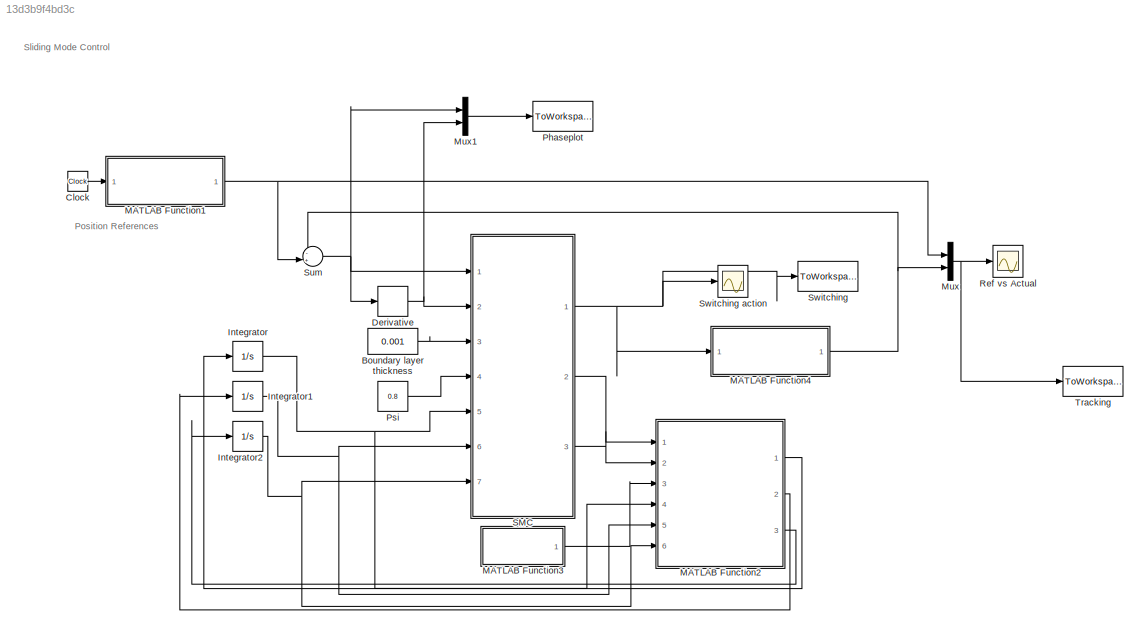
MODEL slx_13d3b9f4bd3c
KIND model
CONFIG AbsTol = auto
CONFIG EnableMultiTasking = off
CONFIG FixedStep = ts
CONFIG MaxStep = auto
CONFIG MinStep = auto
CONFIG RelTol = 1e-3
CONFIG SampleTimeConstraint = Unconstrained
CONFIG SolverName = ode4
CONFIG StartTime = 0.0
CONFIG StopTime = 10.0
BLOCK [Constant] Boundary layer thickness
  Value = 0.001
BLOCK [Clock] Clock
BLOCK [Derivative] Derivative
BLOCK [Integrator] Integrator
  InitialCondition = 1
  Ports = [1, 1]
BLOCK [Integrator] Integrator1
  InitialCondition = 1
  Ports = [1, 1]
BLOCK [Integrator] Integrator2
  InitialCondition = 1
  Ports = [1, 1]
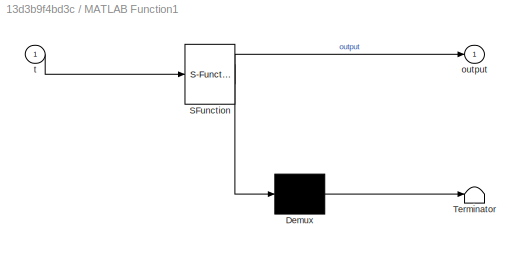
BLOCK [SubSystem] MATLAB Function1
  ErrorFcn = Stateflow.Translate.translate
  PermitHierarchicalResolution = ExplicitOnly
  Ports = [1, 1]
  RequestExecContextInheritance = off
  SFBlockType = MATLAB Function
  TreatAsAtomicUnit = on
BLOCK [Demux] MATLAB Function1/ Demux 
  Outputs = 1
  Ports = [1, 1]
BLOCK [S-Function] MATLAB Function1/ SFunction 
  EnableBusSupport = on
  FunctionName = sf_sfun
  PortCounts = [1 2]
  Ports = [1, 2]
  SFcnIsStateOwnerBlock = off
  SFunctionDeploymentMode = off
  Tag = Stateflow S-Function 4
BLOCK [Terminator] MATLAB Function1/ Terminator 
BLOCK [Outport] MATLAB Function1/output
BLOCK [Inport] MATLAB Function1/t
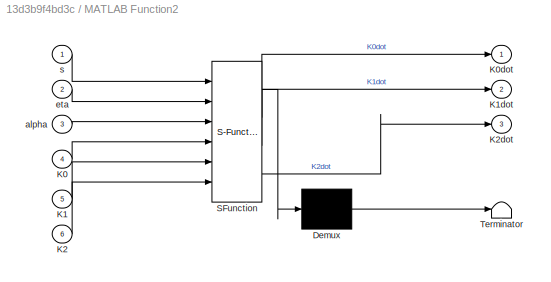
BLOCK [SubSystem] MATLAB Function2
  ErrorFcn = Stateflow.Translate.translate
  PermitHierarchicalResolution = ExplicitOnly
  Ports = [6, 3]
  RequestExecContextInheritance = off
  SFBlockType = MATLAB Function
  TreatAsAtomicUnit = on
BLOCK [Demux] MATLAB Function2/ Demux 
  Outputs = 1
  Ports = [1, 1]
BLOCK [S-Function] MATLAB Function2/ SFunction 
  EnableBusSupport = on
  FunctionName = sf_sfun
  PortCounts = [6 4]
  Ports = [6, 4]
  SFcnIsStateOwnerBlock = off
  SFunctionDeploymentMode = off
  Tag = Stateflow S-Function 1
BLOCK [Terminator] MATLAB Function2/ Terminator 
BLOCK [Inport] MATLAB Function2/K0
  Port = 4
BLOCK [Outport] MATLAB Function2/K0dot
BLOCK [Inport] MATLAB Function2/K1
  Port = 5
BLOCK [Outport] MATLAB Function2/K1dot
  Port = 2
BLOCK [Inport] MATLAB Function2/K2
  Port = 6
BLOCK [Outport] MATLAB Function2/K2dot
  Port = 3
BLOCK [Inport] MATLAB Function2/alpha
  Port = 3
BLOCK [Inport] MATLAB Function2/eta
  Port = 2
BLOCK [Inport] MATLAB Function2/s
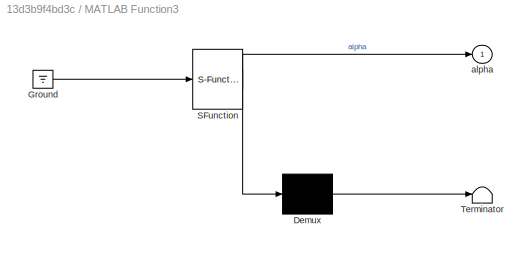
BLOCK [SubSystem] MATLAB Function3
  ErrorFcn = Stateflow.Translate.translate
  PermitHierarchicalResolution = ExplicitOnly
  Ports = [0, 1]
  RequestExecContextInheritance = off
  SFBlockType = MATLAB Function
  TreatAsAtomicUnit = on
BLOCK [Demux] MATLAB Function3/ Demux 
  Outputs = 1
  Ports = [1, 1]
BLOCK [Ground] MATLAB Function3/ Ground 
BLOCK [S-Function] MATLAB Function3/ SFunction 
  EnableBusSupport = on
  FunctionName = sf_sfun
  PortCounts = [1 2]
  Ports = [1, 2]
  SFcnIsStateOwnerBlock = off
  SFunctionDeploymentMode = off
  Tag = Stateflow S-Function 3
BLOCK [Terminator] MATLAB Function3/ Terminator 
BLOCK [Outport] MATLAB Function3/alpha
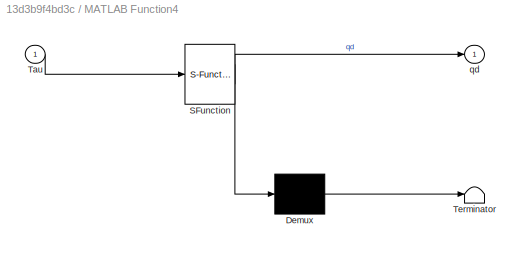
BLOCK [SubSystem] MATLAB Function4
  ErrorFcn = Stateflow.Translate.translate
  PermitHierarchicalResolution = ExplicitOnly
  Ports = [1, 1]
  RequestExecContextInheritance = off
  SFBlockType = MATLAB Function
  TreatAsAtomicUnit = on
BLOCK [Demux] MATLAB Function4/ Demux 
  Outputs = 1
  Ports = [1, 1]
BLOCK [S-Function] MATLAB Function4/ SFunction 
  EnableBusSupport = on
  FunctionName = sf_sfun
  PortCounts = [1 2]
  Ports = [1, 2]
  SFcnIsStateOwnerBlock = off
  SFunctionDeploymentMode = off
  Tag = Stateflow S-Function 5
BLOCK [Terminator] MATLAB Function4/ Terminator 
BLOCK [Inport] MATLAB Function4/Tau
BLOCK [Outport] MATLAB Function4/qd
BLOCK [Mux] Mux
  DisplayOption = bar
  Inputs = 2
  Ports = [2, 1]
BLOCK [Mux] Mux1
  DisplayOption = bar
  Inputs = 2
  Ports = [2, 1]
BLOCK [ToWorkspace] Phaseplot
  FixptAsFi = on
  MaxDataPoints = inf
  Ports = [1]
  SampleTime = -1
  VariableName = phaseplot
BLOCK [Constant] Psi
  Value = 0.8
BLOCK [Scope] Ref vs Actual
  Floating = off
  NumInputPorts = 1
  Ports = [1]
  ScopeSpecificationString = Simulink.scopes.TimeScopeBlockCfg('CurrentConfiguration', extmgr.ConfigurationSet(extmgr.Configuration('Core','General UI',true),extmgr.Configuration('Core','Source UI',true),extmgr.Configuration('Sources','WiredSimulink',true,'DataLoggingSaveFormat','Array','DataLoggingDecimation','1','DataLoggingDecimateData',true),extmgr.Configuration('Visuals','Time Domain',true,'SerializedDisplays',{struct('M...<+1915ch>
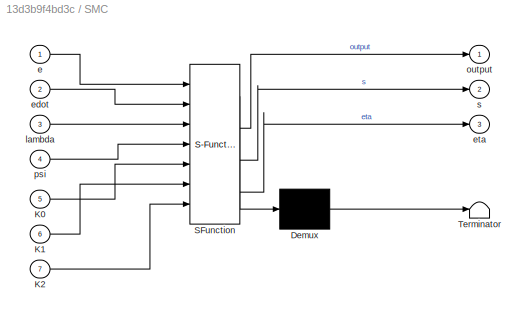
BLOCK [SubSystem] SMC
  ErrorFcn = Stateflow.Translate.translate
  PermitHierarchicalResolution = ExplicitOnly
  Ports = [7, 3]
  RequestExecContextInheritance = off
  SFBlockType = MATLAB Function
  TreatAsAtomicUnit = on
BLOCK [Demux] SMC/ Demux 
  Outputs = 1
  Ports = [1, 1]
BLOCK [S-Function] SMC/ SFunction 
  EnableBusSupport = on
  FunctionName = sf_sfun
  PortCounts = [7 4]
  Ports = [7, 4]
  SFcnIsStateOwnerBlock = off
  SFunctionDeploymentMode = off
  Tag = Stateflow S-Function 2
BLOCK [Terminator] SMC/ Terminator 
BLOCK [Inport] SMC/K0
  Port = 5
BLOCK [Inport] SMC/K1
  Port = 6
BLOCK [Inport] SMC/K2
  Port = 7
BLOCK [Inport] SMC/e
BLOCK [Inport] SMC/edot
  Port = 2
BLOCK [Outport] SMC/eta
  Port = 3
BLOCK [Inport] SMC/lambda
  Port = 3
BLOCK [Outport] SMC/output
BLOCK [Inport] SMC/psi
  Port = 4
BLOCK [Outport] SMC/s
  Port = 2
BLOCK [Sum] Sum
  Inputs = -+|
  Ports = [2, 1]
BLOCK [ToWorkspace] Switching
  FixptAsFi = on
  MaxDataPoints = inf
  Ports = [1]
  SampleTime = -1
  VariableName = switching
BLOCK [Scope] Switching action
  Floating = off
  NumInputPorts = 1
  Ports = [1]
  ScopeSpecificationString = Simulink.scopes.TimeScopeBlockCfg('CurrentConfiguration', extmgr.ConfigurationSet(extmgr.Configuration('Core','General UI',true),extmgr.Configuration('Core','Source UI',true),extmgr.Configuration('Sources','WiredSimulink',true,'DataLoggingVariableName','ScopeData1','DataLoggingSaveFormat','Array','DataLoggingDecimation','1','DataLoggingDecimateData',true),extmgr.Configuration('Visuals','Time Domai...<+864ch>
BLOCK [ToWorkspace] Tracking
  FixptAsFi = on
  MaxDataPoints = inf
  Ports = [1]
  SampleTime = -1
  VariableName = tracking
ANNOTATION (root): Sliding Mode Control
ANNOTATION (root): Position References
LINE Boundary layer thickness:1 -> SMC:3
LINE Clock:1 -> MATLAB Function1:1
NET Derivative:1 -> Mux1:2, SMC:2
NET Integrator1:1 -> MATLAB Function2:5, SMC:6
NET Integrator2:1 -> MATLAB Function2:6, SMC:7
NET Integrator:1 -> MATLAB Function2:4, SMC:5
NET MATLAB Function1:1 -> Mux:1, Sum:2
LINE MATLAB Function2:1 -> Integrator:1
LINE MATLAB Function2:2 -> Integrator1:1
LINE MATLAB Function2:3 -> Integrator2:1
LINE MATLAB Function3:1 -> MATLAB Function2:3
NET MATLAB Function4:1 -> Mux:2, Sum:1
LINE Mux1:1 -> Phaseplot:1
NET Mux:1 -> Ref vs Actual:1, Tracking:1
LINE Psi:1 -> SMC:4
NET SMC:1 -> MATLAB Function4:1, Switching action:1, Switching:1
LINE SMC:2 -> MATLAB Function2:1
LINE SMC:3 -> MATLAB Function2:2
NET Sum:1 -> Derivative:1, Mux1:1, SMC:1
note: NET lines group one-source signal fan-out (src -> all destinations, sorted); 1:1 wires keep LINE
CHART MATLAB Function2 states=1 transitions=1
  STATE_LABEL 'eML_blk_kernel()'
  STATE_LABEL 'SCRIPT:\nfunction [K0dot, K1dot, K2dot] = gain(s, eta, alpha, K0, K1, K2)\n%#codegen\n    ns = norm(s);\n    ne = norm(eta);\n    \n    K0dot = ns*(ne^0) - alpha(1)*K0;\n    K1dot = ns*(ne^1) - alpha(2)*K1;\n    K2dot = ns*(ne^2) - alpha(3)*K2;\nend'
CHART SMC states=1 transitions=1
  STATE_LABEL 'eML_blk_kernel()'
  STATE_LABEL "SCRIPT:\nfunction [output, s, eta] = smc(e, edot, lambda, psi, K0, K1, K2)\n%#codegen\n\n    s = (psi * e + edot);\n    \n    eta = [e' edot']';\n    \n    n = norm(eta);\n    \n    p = K0 + K1*n + K2*n*n;\n    \n    output = -lambda*s - p*sign(s);\n\nend"
CHART MATLAB Function3 states=1 transitions=1
  STATE_LABEL 'eML_blk_kernel()'
  STATE_LABEL 'SCRIPT:\nfunction alpha = scalars()\n%#codegen\n    alpha = [2 2 2];\nend'
CHART MATLAB Function1 states=1 transitions=1
  STATE_LABEL 'eML_blk_kernel()'
  STATE_LABEL 'SCRIPT:\nfunction output = generate_input(t)\n%#codegen\n\n    output = -pi/2+52.5/180*pi*(1-cos(1.26*t));\nend\n'
CHART MATLAB Function4 states=1 transitions=1
  STATE_LABEL 'eML_blk_kernel()'
  STATE_LABEL 'SCRIPT:\nfunction qd = wmr(Tau)\n    % SYSTEM PARAMETERS OF WMR\n    r= 0.15; % Radius of each wheel\n    b= 0.75; % Wheel Base\n    d= 0.30; % Forward distance of Center of mass from center of rear axle\n    mc= 30.00;\n    mw= 1.00;\n    Ic= 15.625;\n    Iw= 0.005;\n    Im= 0.0025;\n\n    m= mc+ 2*mw;\n\n    I = Ic + 2*mw*(d^2 + b^2) + 2*Im;\n    \n    c= r/(2*b);\n    \n    phi = 0;\n    \n    S= [  c*(b*cos(phi)-...<+1241ch>'
CHART  states=0 transitions=0
CHART  states=0 transitions=0
CHART  states=0 transitions=0
CHART  states=0 transitions=0
CHART  states=0 transitions=0
